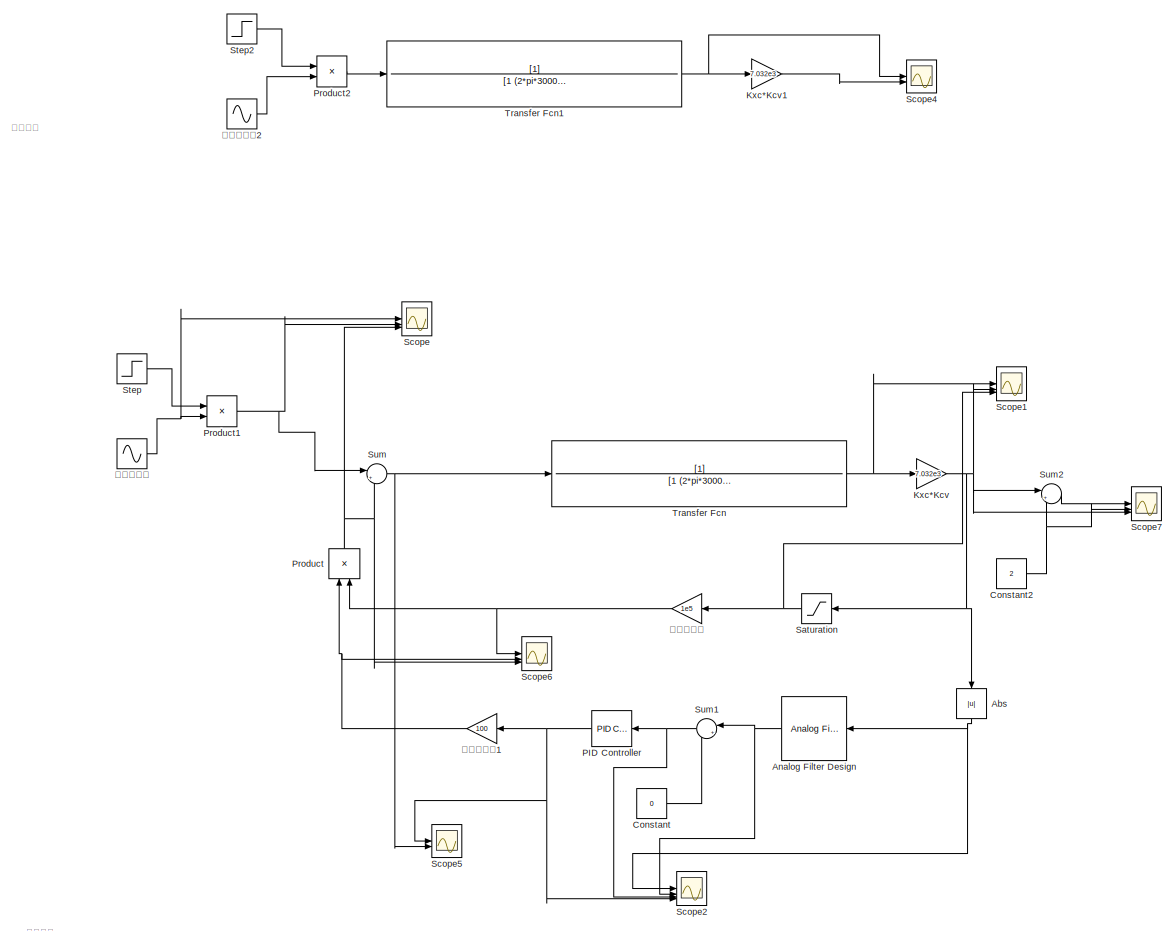
[diagram: root canvas - part 1/2, right side, full height]
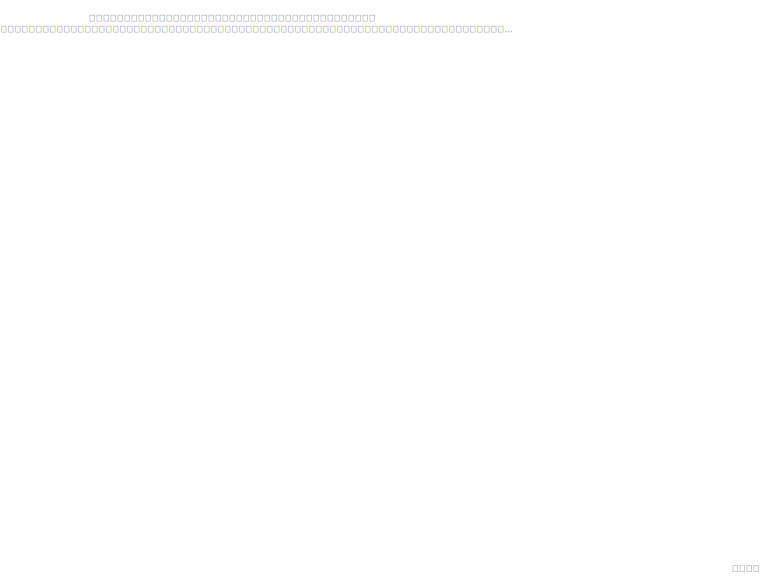
[diagram: root canvas - part 2/2, bottom left region]
MODEL slx_a62f485585c2
KIND model
CONFIG AbsTol = auto
CONFIG EnableMultiTasking = off
CONFIG FixedStep = auto
CONFIG MaxStep = 1e-5
CONFIG MinStep = auto
CONFIG RelTol = 1e-3
CONFIG SampleTimeConstraint = Unconstrained
CONFIG SolverName = VariableStepAuto
CONFIG StartTime = 0.0
CONFIG StopTime = 10
BLOCK [Abs] Abs
  NameLocation = left
  SaturateOnIntegerOverflow = off
BLOCK [Reference] Analog Filter Design  REF=dsparch4/Analog
Filter Design
  NameLocation = top
  SourceBlock = dsparch4/Analog\nFilter Design
  SourceType = Analog Filter Design
BLOCK [Constant] Constant
  Value = 0
BLOCK [Constant] Constant2
  Value = 2
BLOCK [Gain] Kxc*Kcv
  Gain = 7.032e3
BLOCK [Gain] Kxc*Kcv1
  Gain = 7.032e3
BLOCK [Reference] PID Controller  REF=slpidlib/PID Controller
  LibrarySourceBlock = simulink/Continuous/PID Controller
  NameLocation = top
  SourceBlock = slpidlib/PID Controller
  SourceType = PID 1dof
BLOCK [Product] Product
  NameLocation = right
BLOCK [Product] Product1
BLOCK [Product] Product2
BLOCK [Saturate] Saturation
  LowerLimit = -1e-5
  NameLocation = top
  UpperLimit = 1e-5
BLOCK [Scope] Scope
  Floating = off
  NumInputPorts = 3
  ScopeSpecificationString = Simulink.scopes.TimeScopeBlockCfg('CurrentConfiguration', extmgr.ConfigurationSet(extmgr.Configuration('Core','General UI',true),extmgr.Configuration('Core','Source UI',true),extmgr.Configuration('Sources','WiredSimulink',true),extmgr.Configuration('Visuals','Time Domain',true,'SerializedDisplays',{struct('MinYLimReal','-1.25','MaxYLimReal','1.25','YLabelReal','','MinYLimMag','0.00000','MaxYLimMag...<+2757ch>
BLOCK [Scope] Scope1
  Floating = off
  NumInputPorts = 3
  ScopeSpecificationString = Simulink.scopes.TimeScopeBlockCfg('CurrentConfiguration', extmgr.ConfigurationSet(extmgr.Configuration('Core','General UI',true),extmgr.Configuration('Core','Source UI',true),extmgr.Configuration('Sources','WiredSimulink',true,'DataLoggingVariableName','ScopeData1'),extmgr.Configuration('Visuals','Time Domain',true,'SerializedDisplays',{struct('MinYLimReal','-0.00000009','MaxYLimReal','0.00000009'...<+2859ch>
BLOCK [Scope] Scope2
  Floating = off
  NumInputPorts = 4
  ScopeSpecificationString = Simulink.scopes.TimeScopeBlockCfg('CurrentConfiguration', extmgr.ConfigurationSet(extmgr.Configuration('Core','General UI',true),extmgr.Configuration('Core','Source UI',true),extmgr.Configuration('Sources','WiredSimulink',true,'DataLoggingVariableName','ScopeData2'),extmgr.Configuration('Visuals','Time Domain',true,'SerializedDisplays',{struct('MinYLimReal','-1.00000','MaxYLimReal','1.00000','YLab...<+3574ch>
BLOCK [Scope] Scope4
  Floating = off
  NumInputPorts = 2
  ScopeSpecificationString = Simulink.scopes.TimeScopeBlockCfg('CurrentConfiguration', extmgr.ConfigurationSet(extmgr.Configuration('Core','General UI',true),extmgr.Configuration('Core','Source UI',true),extmgr.Configuration('Sources','WiredSimulink',true,'DataLoggingVariableName','ScopeData4'),extmgr.Configuration('Visuals','Time Domain',true,'SerializedDisplays',{struct('MinYLimReal','-0.0000001','MaxYLimReal','0.0000001','...<+2139ch>
BLOCK [Scope] Scope5
  Floating = off
  NumInputPorts = 2
  ScopeSpecificationString = Simulink.scopes.TimeScopeBlockCfg('CurrentConfiguration', extmgr.ConfigurationSet(extmgr.Configuration('Core','General UI',true),extmgr.Configuration('Core','Source UI',true),extmgr.Configuration('Sources','WiredSimulink',true,'DataLoggingVariableName','ScopeData5'),extmgr.Configuration('Visuals','Time Domain',true,'SerializedDisplays',{struct('MinYLimReal','-550.00000','MaxYLimReal','-50.00000','...<+2149ch>
BLOCK [Scope] Scope6
  Floating = off
  NumInputPorts = 3
  ScopeSpecificationString = Simulink.scopes.TimeScopeBlockCfg('CurrentConfiguration', extmgr.ConfigurationSet(extmgr.Configuration('Core','General UI',true),extmgr.Configuration('Core','Source UI',true),extmgr.Configuration('Sources','WiredSimulink',true,'DataLoggingVariableName','ScopeData6'),extmgr.Configuration('Visuals','Time Domain',true,'SerializedDisplays',{struct('MinYLimReal','-1.25','MaxYLimReal','1.25','YLabelReal...<+2840ch>
BLOCK [Scope] Scope7
  Floating = off
  NumInputPorts = 3
  ScopeSpecificationString = Simulink.scopes.TimeScopeBlockCfg('CurrentConfiguration', extmgr.ConfigurationSet(extmgr.Configuration('Core','General UI',true),extmgr.Configuration('Core','Source UI',true),extmgr.Configuration('Sources','WiredSimulink',true,'DataLoggingVariableName','ScopeData7'),extmgr.Configuration('Visuals','Time Domain',true,'SerializedDisplays',{struct('MinYLimReal','1.99935','MaxYLimReal','2.00065','YLabe...<+2763ch>
BLOCK [Step] Step
  SampleTime = 0
  Time = 0.5
BLOCK [Step] Step2
  SampleTime = 0
  Time = 0.5
BLOCK [Sum] Sum
  Inputs = |+-
BLOCK [Sum] Sum1
  Inputs = |+-
  NameLocation = top
BLOCK [Sum] Sum2
  Inputs = |++
BLOCK [TransferFcn] Transfer Fcn
  Denominator = [1 (2*pi*3000)/2000 (3000*2*pi)^2]
BLOCK [TransferFcn] Transfer Fcn1
  Denominator = [1 (2*pi*3000)/2000 (3000*2*pi)^2]
BLOCK [Sin] 哥氏加速度
  Frequency = 2*pi*2900
  SampleTime = 0
BLOCK [Sin] 哥氏加速度2
  Frequency = 2*pi*2900
  SampleTime = 0
BLOCK [Gain] 控制器增益1
  Gain = 100
  NameLocation = top
BLOCK [Gain] 饱和器增益
  Gain = 1e5
  NameLocation = top
ANNOTATION (root): 仿真说明： 参考夏国明大论文的闭环检测方案仿真，趋势基本上是对的，参数还没完全调对。 仿真理解： 他的反馈一路用来提取哥氏力的频率；一路用来调整反馈力幅值，使得反馈力能够与哥氏力相抵消。可以通过观察检测模态输出位移信号，观察闭环效果，当前闭环参数效果尚不理想，但基本思路是对的
ANNOTATION (root): 开环检测
ANNOTATION (root): 闭环检测
NET Abs:1 -> Analog Filter Design:1, Scope2:1
NET Analog Filter Design:1 -> Scope2:2, Sum1:1
NET Constant2:1 -> Scope7:2, Sum2:2
LINE Constant:1 -> Sum1:2
LINE Kxc*Kcv1:1 -> Scope4:2
NET Kxc*Kcv:1 -> Abs:1, Saturation:1, Scope1:2, Scope7:3, Sum2:1
NET PID Controller:1 -> Scope2:4, Scope5:1, 控制器增益1:1
NET Product1:1 -> Scope:2, Sum:1
LINE Product2:1 -> Transfer Fcn1:1
NET Product:1 -> Scope6:3, Scope:3, Sum:2
NET Saturation:1 -> Scope1:3, 饱和器增益:1
LINE Step2:1 -> Product2:1
LINE Step:1 -> Product1:1
NET Sum1:1 -> PID Controller:1, Scope2:3
LINE Sum2:1 -> Scope7:1
NET Sum:1 -> Scope5:2, Transfer Fcn:1
NET Transfer Fcn1:1 -> Kxc*Kcv1:1, Scope4:1
NET Transfer Fcn:1 -> Kxc*Kcv:1, Scope1:1
LINE 哥氏加速度2:1 -> Product2:2
NET 哥氏加速度:1 -> Product1:2, Scope:1
NET 控制器增益1:1 -> Product:1, Scope6:2
NET 饱和器增益:1 -> Product:2, Scope6:1
note: NET lines group one-source signal fan-out (src -> all destinations, sorted); 1:1 wires keep LINE
